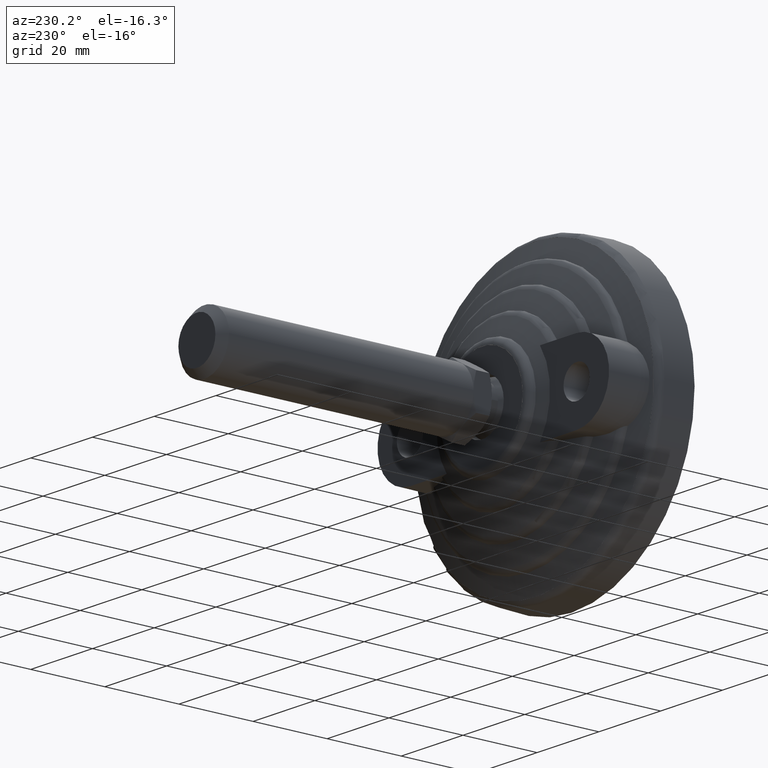
[diagram: clean part render]
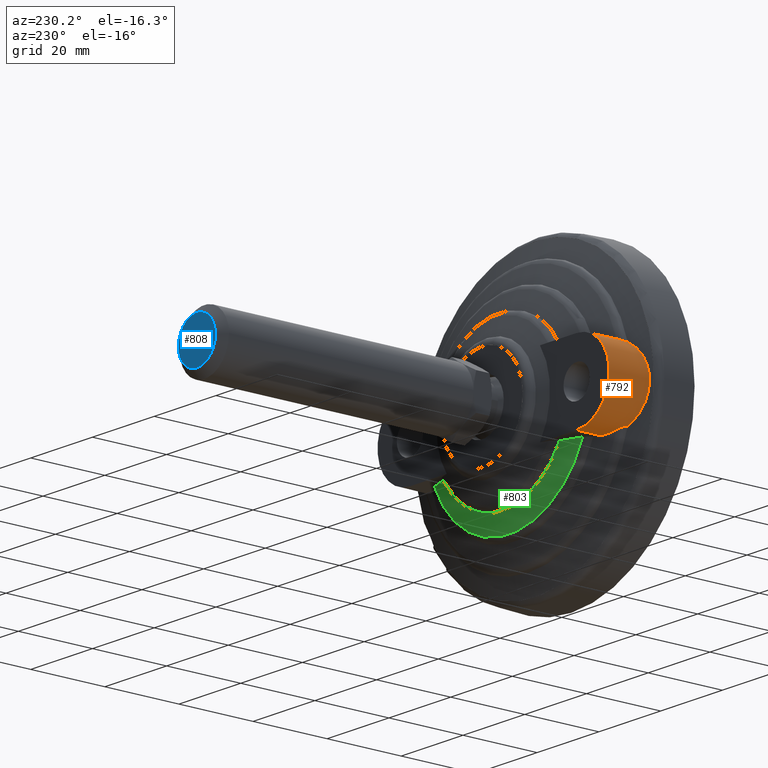
[diagram: same view with three faces highlighted in distinct colors, each labeled with its STEP entity id]
A machine part, auxiliary view with three faces highlighted in distinct colors.
Their STEP definitions:

[orange] entity #792 — the highlighted cylindrical surface (partial cylindrical patch) has radius 10.5 mm, axis along (0, -1, 0).
#57=CYLINDRICAL_SURFACE('',#937,10.5);
#90=B_SPLINE_CURVE_WITH_KNOTS('',3,(#1239,#1240,#1241,#1242,#1243,#1244,
#1245,#1246,#1247,#1248,#1249,#1250),.UNSPECIFIED.,.F.,.F.,(4,2,2,2,2,4),
(1.00100053580773,1.06143819743549,1.31623628903366,1.57103438063183,1.82583247223,
2.08063056382818),.UNSPECIFIED.);
#91=B_SPLINE_CURVE_WITH_KNOTS('',3,(#1252,#1253,#1254,#1255,#1256,#1257,
#1258,#1259,#1260,#1261,#1262,#1263),.UNSPECIFIED.,.F.,.F.,(4,2,2,2,2,4),
(2.08063056382818,2.33542865542635,2.59022674702452,2.84502483862269,3.09982293022086,
3.16026059184862),.UNSPECIFIED.);
#102=B_SPLINE_CURVE_WITH_KNOTS('',3,(#1436,#1437,#1438,#1439,#1440,#1441,
#1442,#1443,#1444,#1445),.UNSPECIFIED.,.F.,.F.,(4,2,2,2,4),(-1.34250230493371,
-1.30785611308282,-1.25331155550892,-1.16126249733892,-1.09316828220902),
 .UNSPECIFIED.);
#104=B_SPLINE_CURVE_WITH_KNOTS('',3,(#1460,#1461,#1462,#1463,#1464,#1465,
#1466,#1467,#1468,#1469),.UNSPECIFIED.,.F.,.F.,(4,2,2,2,4),(-0.272169011460603,
-0.206673864768738,-0.119790041486483,-0.0555152369709436,-0.0171393644475442),
 .UNSPECIFIED.);
#105=B_SPLINE_CURVE_WITH_KNOTS('',3,(#1495,#1496,#1497,#1498,#1499,#1500),
 .UNSPECIFIED.,.F.,.F.,(4,2,4),(3.33584065151674,3.62644813034734,3.7210112843913),
 .UNSPECIFIED.);
#106=B_SPLINE_CURVE_WITH_KNOTS('',3,(#1502,#1503,#1504,#1505,#1506,#1507),
 .UNSPECIFIED.,.F.,.F.,(4,2,4),(0.435128689238069,0.529691843282031,0.820299322112635),
 .UNSPECIFIED.);
#134=FACE_OUTER_BOUND('',#180,.T.);
#180=EDGE_LOOP('',(#611,#612,#613,#614,#615,#616,#617,#618,#619));
#225=LINE('',#1509,#252);
#226=LINE('',#1512,#253);
#252=VECTOR('',#1099,6.3774577463435);
#253=VECTOR('',#1102,6.3774577463435);
#307=CIRCLE('',#938,10.5);
#325=VERTEX_POINT('',#1236);
#326=VERTEX_POINT('',#1238);
#327=VERTEX_POINT('',#1251);
#355=VERTEX_POINT('',#1423);
#358=VERTEX_POINT('',#1458);
#367=VERTEX_POINT('',#1494);
#368=VERTEX_POINT('',#1501);
#369=VERTEX_POINT('',#1508);
#370=VERTEX_POINT('',#1510);
#412=EDGE_CURVE('',#325,#326,#90,.T.);
#413=EDGE_CURVE('',#326,#327,#91,.T.);
#449=EDGE_CURVE('',#327,#355,#102,.T.);
#452=EDGE_CURVE('',#358,#325,#104,.T.);
#464=EDGE_CURVE('',#355,#367,#105,.T.);
#465=EDGE_CURVE('',#368,#358,#106,.T.);
#466=EDGE_CURVE('',#368,#369,#225,.T.);
#467=EDGE_CURVE('',#369,#370,#307,.T.);
#468=EDGE_CURVE('',#367,#370,#226,.T.);
#611=ORIENTED_EDGE('',*,*,#464,.F.);
#612=ORIENTED_EDGE('',*,*,#449,.F.);
#613=ORIENTED_EDGE('',*,*,#413,.F.);
#614=ORIENTED_EDGE('',*,*,#412,.F.);
#615=ORIENTED_EDGE('',*,*,#452,.F.);
#616=ORIENTED_EDGE('',*,*,#465,.F.);
#617=ORIENTED_EDGE('',*,*,#466,.T.);
#618=ORIENTED_EDGE('',*,*,#467,.T.);
#619=ORIENTED_EDGE('',*,*,#468,.F.);
#792=ADVANCED_FACE('',(#134),#57,.T.);
#937=AXIS2_PLACEMENT_3D('',#1493,#1097,#1098);
#938=AXIS2_PLACEMENT_3D('',#1511,#1100,#1101);
#1097=DIRECTION('center_axis',(0.,-1.,0.));
#1098=DIRECTION('ref_axis',(0.,0.,-1.));
#1099=DIRECTION('',(0.,1.,0.));
#1100=DIRECTION('center_axis',(0.,-1.,0.));
#1101=DIRECTION('ref_axis',(0.,0.,-1.));
#1102=DIRECTION('',(0.,1.,0.));
#1236=CARTESIAN_POINT('',(-32.3063360973724,11.6343896633681,9.06050755872555));
#1238=CARTESIAN_POINT('',(-37.5,10.0799933034086,-2.21287018657007E-15));
#1239=CARTESIAN_POINT('Ctrl Pts',(-32.3063360973724,11.6343896633682,9.06050755872553));
#1240=CARTESIAN_POINT('Ctrl Pts',(-32.4756290831059,11.5807422055193,8.96136019027991));
#1241=CARTESIAN_POINT('Ctrl Pts',(-32.641651817313,11.5284577657608,8.85775154482924));
#1242=CARTESIAN_POINT('Ctrl Pts',(-33.4889279688686,11.2631123545329,8.29573212712396));
#1243=CARTESIAN_POINT('Ctrl Pts',(-34.1415490632157,11.0639846751723,7.74512297053743));
#1244=CARTESIAN_POINT('Ctrl Pts',(-35.3059660725661,10.7146871863577,6.48070832783638));
#1245=CARTESIAN_POINT('Ctrl Pts',(-35.8178344612948,10.5643978000669,5.7670026229962));
#1246=CARTESIAN_POINT('Ctrl Pts',(-36.6493278685147,10.3226891385099,4.23119298843608));
#1247=CARTESIAN_POINT('Ctrl Pts',(-36.9700156185367,10.2309093737991,3.40717322759573));
#1248=CARTESIAN_POINT('Ctrl Pts',(-37.3954081081618,10.1095537846386,1.71625496376481));
#1249=CARTESIAN_POINT('Ctrl Pts',(-37.5,10.0799933034086,0.849326971993903));
#1250=CARTESIAN_POINT('Ctrl Pts',(-37.5,10.0799933034086,3.46944695195361E-16));
#1251=CARTESIAN_POINT('',(-32.3063360973724,11.6343896633681,-9.06050755872555));
#1252=CARTESIAN_POINT('Ctrl Pts',(-37.5,10.0799933034086,3.46944695195361E-16));
#1253=CARTESIAN_POINT('Ctrl Pts',(-37.5,10.0799933034086,-0.849326971993903));
#1254=CARTESIAN_POINT('Ctrl Pts',(-37.3954081081618,10.1095537846386,-1.7162549637648));
#1255=CARTESIAN_POINT('Ctrl Pts',(-36.9700156185367,10.2309093737991,-3.40717322759573));
#1256=CARTESIAN_POINT('Ctrl Pts',(-36.6493278685147,10.3226891385099,-4.23119298843608));
#1257=CARTESIAN_POINT('Ctrl Pts',(-35.8178344612948,10.5643978000669,-5.7670026229962));
#1258=CARTESIAN_POINT('Ctrl Pts',(-35.3059660725661,10.7146871863577,-6.48070832783638));
#1259=CARTESIAN_POINT('Ctrl Pts',(-34.1415490632157,11.0639846751723,-7.74512297053743));
#1260=CARTESIAN_POINT('Ctrl Pts',(-33.4889279688686,11.2631123545329,-8.29573212712396));
#1261=CARTESIAN_POINT('Ctrl Pts',(-32.641651817313,11.5284577657608,-8.85775154482925));
#1262=CARTESIAN_POINT('Ctrl Pts',(-32.4756290831059,11.5807422055193,-8.96136019027992));
#1263=CARTESIAN_POINT('Ctrl Pts',(-32.3063360973724,11.6343896633682,-9.06050755872554));
#1423=CARTESIAN_POINT('',(-30.7243523480937,13.3536735555763,-9.81729084764473));
#1436=CARTESIAN_POINT('Ctrl Pts',(-32.3063360973724,11.6343896633681,-9.06050755872552));
#1437=CARTESIAN_POINT('Ctrl Pts',(-32.2944061287548,11.7479781718539,-9.06749441047813));
#1438=CARTESIAN_POINT('Ctrl Pts',(-32.270683279782,11.8594235436489,-9.08138163084829));
#1439=CARTESIAN_POINT('Ctrl Pts',(-32.1815789120219,12.1384624392739,-9.132644311859));
#1440=CARTESIAN_POINT('Ctrl Pts',(-32.1017988600934,12.2963304649361,-9.17790309393391));
#1441=CARTESIAN_POINT('Ctrl Pts',(-31.8402238368094,12.6809822782324,-9.31971782156731));
#1442=CARTESIAN_POINT('Ctrl Pts',(-31.6184051368937,12.8918483291998,-9.4342004501339));
#1443=CARTESIAN_POINT('Ctrl Pts',(-31.1601258003481,13.1847739484002,-9.64309155385951));
#1444=CARTESIAN_POINT('Ctrl Pts',(-30.9473186237771,13.2830651660485,-9.73270488749805));
#1445=CARTESIAN_POINT('Ctrl Pts',(-30.7243523480937,13.3536735555763,-9.81729084764474));
#1458=CARTESIAN_POINT('',(-30.7243523480937,13.3536735555763,9.81729084764472));
#1460=CARTESIAN_POINT('Ctrl Pts',(-30.7243523480937,13.3536735555763,9.81729084764473));
#1461=CARTESIAN_POINT('Ctrl Pts',(-30.9269336777935,13.2895206185697,9.74043825535056));
#1462=CARTESIAN_POINT('Ctrl Pts',(-31.1203951590664,13.2027239828022,9.65974903299946));
#1463=CARTESIAN_POINT('Ctrl Pts',(-31.5363810385897,12.9517947973314,9.47305844350507));
#1464=CARTESIAN_POINT('Ctrl Pts',(-31.7518355665092,12.7690383424398,9.36525787547108));
#1465=CARTESIAN_POINT('Ctrl Pts',(-32.0513621703682,12.3871051564537,9.20622260062836));
#1466=CARTESIAN_POINT('Ctrl Pts',(-32.1554168514334,12.2038781059998,9.14756670705057));
#1467=CARTESIAN_POINT('Ctrl Pts',(-32.2653715864553,11.8837691796782,9.08449820997784));
#1468=CARTESIAN_POINT('Ctrl Pts',(-32.293108898622,11.7603294563103,9.06825414044203));
#1469=CARTESIAN_POINT('Ctrl Pts',(-32.3063360973724,11.6343896633681,9.06050755872552));
#1493=CARTESIAN_POINT('Origin',(-27.,1.,-1.77635683940025E-15));
#1494=CARTESIAN_POINT('',(-27.,14.6225422536565,-10.5));
#1495=CARTESIAN_POINT('Ctrl Pts',(-30.7243523480937,13.3536735555763,-9.81729084764473));
#1496=CARTESIAN_POINT('Ctrl Pts',(-29.8300063230366,13.6428573128393,-10.1565758673229));
#1497=CARTESIAN_POINT('Ctrl Pts',(-28.8835374298766,13.9591533364497,-10.373863285386));
#1498=CARTESIAN_POINT('Ctrl Pts',(-27.6208747110214,14.4006946398294,-10.4862470382709));
#1499=CARTESIAN_POINT('Ctrl Pts',(-27.3100625601747,14.5109163877395,-10.5));
#1500=CARTESIAN_POINT('Ctrl Pts',(-27.,14.6225422536565,-10.5));
#1501=CARTESIAN_POINT('',(-27.,14.6225422536565,10.5));
#1502=CARTESIAN_POINT('Ctrl Pts',(-27.,14.6225422536565,10.5));
#1503=CARTESIAN_POINT('Ctrl Pts',(-27.3100625601747,14.5109163877395,10.5));
#1504=CARTESIAN_POINT('Ctrl Pts',(-27.6208747110214,14.4006946398294,10.4862470382709));
#1505=CARTESIAN_POINT('Ctrl Pts',(-28.8835374298766,13.9591533364497,10.373863285386));
#1506=CARTESIAN_POINT('Ctrl Pts',(-29.8300063230366,13.6428573128393,10.1565758673229));
#1507=CARTESIAN_POINT('Ctrl Pts',(-30.7243523480937,13.3536735555763,9.81729084764473));
#1508=CARTESIAN_POINT('',(-27.,21.,10.5));
#1509=CARTESIAN_POINT('',(-27.,14.6225422536565,10.5));
#1510=CARTESIAN_POINT('',(-27.,21.,-10.5));
#1511=CARTESIAN_POINT('Origin',(-27.,21.,-1.77635683940025E-15));
#1512=CARTESIAN_POINT('',(-27.,14.6225422536565,-10.5));

[blue] entity #808 — the highlighted planar face has unit normal (0, 1, 0).
#43=PLANE('',#959);
#150=FACE_OUTER_BOUND('',#201,.T.);
#201=EDGE_LOOP('',(#701));
#310=CIRCLE('',#956,6.);
#376=VERTEX_POINT('',#1577);
#488=EDGE_CURVE('',#376,#376,#310,.T.);
#701=ORIENTED_EDGE('',*,*,#488,.F.);
#808=ADVANCED_FACE('',(#150),#43,.T.);
#956=AXIS2_PLACEMENT_3D('',#1579,#1144,#1145);
#959=AXIS2_PLACEMENT_3D('',#1584,#1151,#1152);
#1144=DIRECTION('center_axis',(0.,-1.,0.));
#1145=DIRECTION('ref_axis',(-1.,0.,0.));
#1151=DIRECTION('center_axis',(0.,1.,0.));
#1152=DIRECTION('ref_axis',(0.,0.,1.));
#1577=CARTESIAN_POINT('',(6.,101.,7.34788079488412E-16));
#1579=CARTESIAN_POINT('Origin',(0.,101.,0.));
#1584=CARTESIAN_POINT('Origin',(1.9265,101.,-4.71840828127762E-16));

[green] entity #803 — the highlighted conical surface has half-angle 69.278 deg.
#66=(
BOUNDED_CURVE()
B_SPLINE_CURVE(2,(#1518,#1519,#1520),.UNSPECIFIED.,.F.,.F.)
B_SPLINE_CURVE_WITH_KNOTS((3,3),(0.,5.7091762119522),.UNSPECIFIED.)
CURVE()
GEOMETRIC_REPRESENTATION_ITEM()
RATIONAL_B_SPLINE_CURVE((1.,1.00651975650061,1.))
REPRESENTATION_ITEM('')
);
#72=(
BOUNDED_CURVE()
B_SPLINE_CURVE(2,(#1550,#1551,#1552),.UNSPECIFIED.,.F.,.F.)
B_SPLINE_CURVE_WITH_KNOTS((3,3),(0.,5.7091762119522),.UNSPECIFIED.)
CURVE()
GEOMETRIC_REPRESENTATION_ITEM()
RATIONAL_B_SPLINE_CURVE((1.,1.00651975650061,1.))
REPRESENTATION_ITEM('')
);
#145=FACE_OUTER_BOUND('',#193,.T.);
#193=EDGE_LOOP('',(#684,#685,#686,#687));
#287=CIRCLE('',#907,21.3688559201133);
#293=CIRCLE('',#916,26.2130899969146);
#336=VERTEX_POINT('',#1296);
#337=VERTEX_POINT('',#1307);
#347=VERTEX_POINT('',#1369);
#348=VERTEX_POINT('',#1370);
#425=EDGE_CURVE('',#337,#336,#287,.T.);
#439=EDGE_CURVE('',#347,#348,#293,.T.);
#470=EDGE_CURVE('',#336,#348,#66,.T.);
#483=EDGE_CURVE('',#347,#337,#72,.T.);
#684=ORIENTED_EDGE('',*,*,#483,.T.);
#685=ORIENTED_EDGE('',*,*,#425,.T.);
#686=ORIENTED_EDGE('',*,*,#470,.T.);
#687=ORIENTED_EDGE('',*,*,#439,.F.);
#771=CONICAL_SURFACE('',#950,23.7909729585139,1.20912995397194);
#803=ADVANCED_FACE('',(#145),#771,.T.);
#907=AXIS2_PLACEMENT_3D('',#1308,#1033,#1034);
#916=AXIS2_PLACEMENT_3D('',#1371,#1052,#1053);
#950=AXIS2_PLACEMENT_3D('',#1570,#1131,#1132);
#1033=DIRECTION('center_axis',(0.,-1.,0.));
#1034=DIRECTION('ref_axis',(-1.,0.,0.));
#1052=DIRECTION('center_axis',(0.,-1.,0.));
#1053=DIRECTION('ref_axis',(-1.,0.,0.));
#1131=DIRECTION('center_axis',(0.,-1.,0.));
#1132=DIRECTION('ref_axis',(-1.,0.,0.));
#1296=CARTESIAN_POINT('',(18.6112332566802,18.6885788450571,-10.5));
#1307=CARTESIAN_POINT('',(-18.6112332566802,18.6885788450571,-10.5));
#1308=CARTESIAN_POINT('Origin',(0.,18.6885788450571,0.));
#1369=CARTESIAN_POINT('',(-24.0182448814717,16.8559735555763,-10.5));
#1370=CARTESIAN_POINT('',(24.0182448814717,16.8559735555763,-10.5));
#1371=CARTESIAN_POINT('Origin',(0.,16.8559735555763,0.));
#1518=CARTESIAN_POINT('Ctrl Pts',(18.6112332566802,18.6885788450571,-10.5));
#1519=CARTESIAN_POINT('Ctrl Pts',(21.0394999057571,17.8884976336614,-10.5));
#1520=CARTESIAN_POINT('Ctrl Pts',(24.0182448814717,16.8559735555763,-10.5));
#1550=CARTESIAN_POINT('Ctrl Pts',(-24.0182448814717,16.8559735555763,-10.5));
#1551=CARTESIAN_POINT('Ctrl Pts',(-21.0394999057571,17.8884976336614,-10.5));
#1552=CARTESIAN_POINT('Ctrl Pts',(-18.6112332566802,18.6885788450571,-10.5));
#1570=CARTESIAN_POINT('Origin',(0.,17.7722762003167,0.));